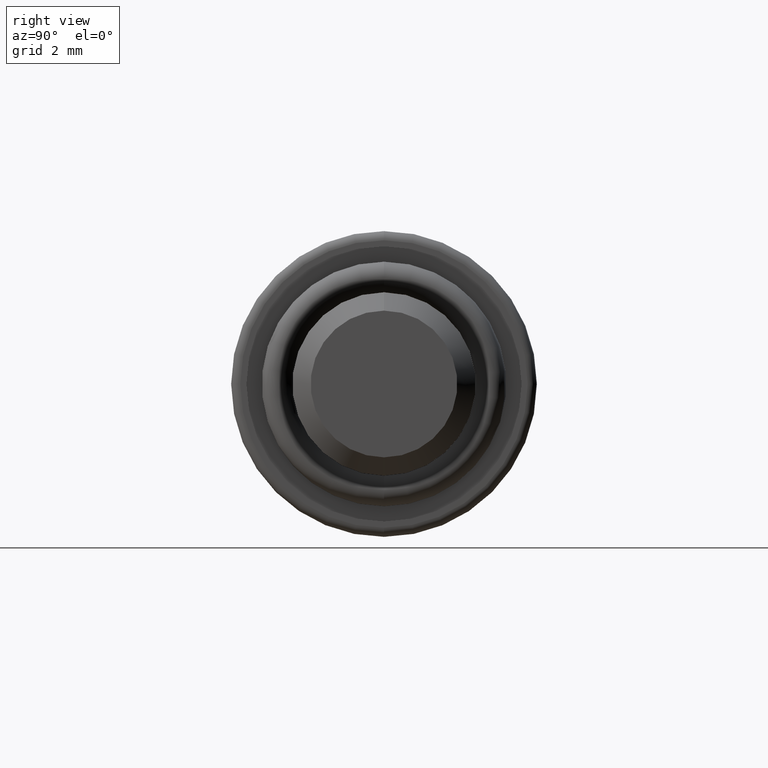
[diagram: clean part render]
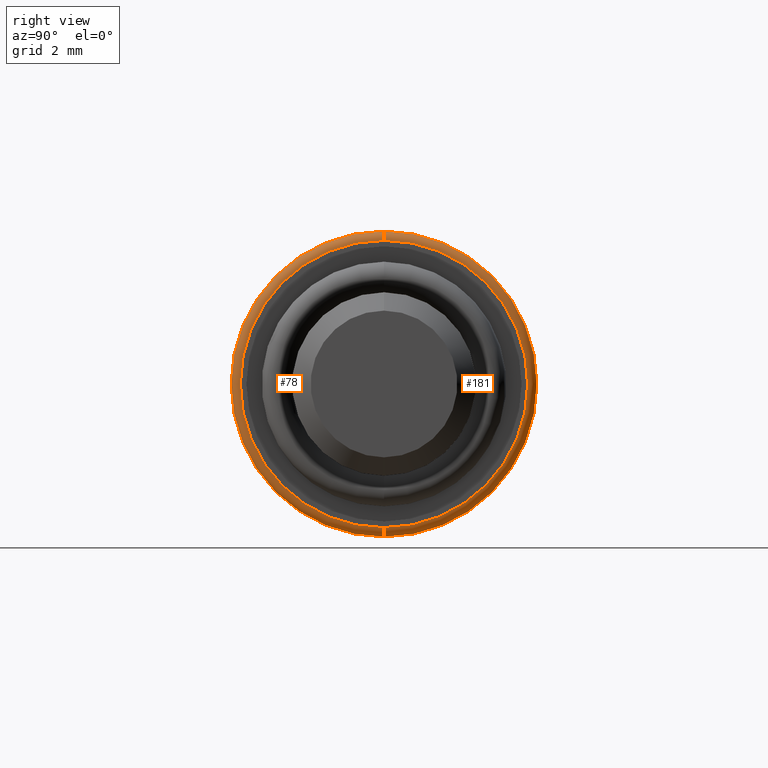
[diagram: same view with one multi-face feature highlighted, each face labeled with its STEP entity id]
A machine part, right view. The highlighted faces form ONE feature: a constant-radius fillet chain: 2 tangent blend faces with common blend radius 0.3 mm. The faces share edges in the B-rep.
Their STEP definitions:
[1] entity #78 (Torus):
#62 = EDGE_CURVE ( 'NONE', #451, #239, #112, .T. ) ;
#78 = ADVANCED_FACE ( 'NONE', ( #259 ), #421, .T. ) ;
#81 = DIRECTION ( 'NONE',  ( 0.0000000000000000000, 1.224646799147353200E-016, 1.000000000000000000 ) ) ;
#102 = AXIS2_PLACEMENT_3D ( 'NONE', #430, #266, #489 ) ;
#105 = ORIENTED_EDGE ( 'NONE', *, *, #233, .T. ) ;
#112 = CIRCLE ( 'NONE', #806, 0.2999999999999999300 ) ;
#142 = DIRECTION ( 'NONE',  ( 0.0000000000000000000, 0.0000000000000000000, -1.000000000000000000 ) ) ;
#151 = CARTESIAN_POINT ( 'NONE',  ( 0.0000000000000000000, 0.0000000000000000000, -4.700000000000000200 ) ) ;
#190 = EDGE_CURVE ( 'NONE', #454, #451, #662, .T. ) ;
#200 = CARTESIAN_POINT ( 'NONE',  ( 0.0000000000000000000, 5.939536975864663000E-016, 4.700000000000000200 ) ) ;
#209 = DIRECTION ( 'NONE',  ( 1.000000000000000000, 0.0000000000000000000, 0.0000000000000000000 ) ) ;
#211 = CARTESIAN_POINT ( 'NONE',  ( -0.2999999999999999300, 6.123233995736765300E-016, 5.000000000000000000 ) ) ;
#222 = ORIENTED_EDGE ( 'NONE', *, *, #62, .F. ) ;
#233 = EDGE_CURVE ( 'NONE', #454, #746, #338, .T. ) ;
#239 = VERTEX_POINT ( 'NONE', #200 ) ;
#259 = FACE_OUTER_BOUND ( 'NONE', #353, .T. ) ;
#266 = DIRECTION ( 'NONE',  ( -1.000000000000000000, -0.0000000000000000000, -0.0000000000000000000 ) ) ;
#276 = AXIS2_PLACEMENT_3D ( 'NONE', #345, #633, #142 ) ;
#334 = DIRECTION ( 'NONE',  ( 0.0000000000000000000, 0.0000000000000000000, -1.000000000000000000 ) ) ;
#335 = AXIS2_PLACEMENT_3D ( 'NONE', #519, #631, #709 ) ;
#338 = CIRCLE ( 'NONE', #276, 0.2999999999999999300 ) ;
#344 = ORIENTED_EDGE ( 'NONE', *, *, #190, .F. ) ;
#345 = CARTESIAN_POINT ( 'NONE',  ( -0.2999999999999999300, 0.0000000000000000000, -4.700000000000000200 ) ) ;
#353 = EDGE_LOOP ( 'NONE', ( #222, #344, #105, #551 ) ) ;
#408 = AXIS2_PLACEMENT_3D ( 'NONE', #439, #209, #334 ) ;
#421 = TOROIDAL_SURFACE ( 'NONE', #408, 4.700000000000000200, 0.2999999999999999900 ) ;
#430 = CARTESIAN_POINT ( 'NONE',  ( -0.2999999999999999300, 0.0000000000000000000, 0.0000000000000000000 ) ) ;
#439 = CARTESIAN_POINT ( 'NONE',  ( -0.2999999999999999300, 0.0000000000000000000, 0.0000000000000000000 ) ) ;
#451 = VERTEX_POINT ( 'NONE', #211 ) ;
#454 = VERTEX_POINT ( 'NONE', #470 ) ;
#466 = EDGE_CURVE ( 'NONE', #239, #746, #703, .T. ) ;
#470 = CARTESIAN_POINT ( 'NONE',  ( -0.2999999999999999300, 0.0000000000000000000, -5.000000000000000000 ) ) ;
#489 = DIRECTION ( 'NONE',  ( 0.0000000000000000000, 0.0000000000000000000, -1.000000000000000000 ) ) ;
#519 = CARTESIAN_POINT ( 'NONE',  ( 0.0000000000000000000, 0.0000000000000000000, 0.0000000000000000000 ) ) ;
#521 = DIRECTION ( 'NONE',  ( 0.0000000000000000000, 1.000000000000000000, -1.224646799147353200E-016 ) ) ;
#551 = ORIENTED_EDGE ( 'NONE', *, *, #466, .F. ) ;
#631 = DIRECTION ( 'NONE',  ( 1.000000000000000000, 0.0000000000000000000, 0.0000000000000000000 ) ) ;
#633 = DIRECTION ( 'NONE',  ( 0.0000000000000000000, -1.000000000000000000, 0.0000000000000000000 ) ) ;
#662 = CIRCLE ( 'NONE', #102, 5.000000000000000000 ) ;
#670 = CARTESIAN_POINT ( 'NONE',  ( -0.2999999999999999300, 5.755839955992559700E-016, 4.700000000000000200 ) ) ;
#703 = CIRCLE ( 'NONE', #335, 4.700000000000000200 ) ;
#709 = DIRECTION ( 'NONE',  ( 0.0000000000000000000, 0.0000000000000000000, -1.000000000000000000 ) ) ;
#746 = VERTEX_POINT ( 'NONE', #151 ) ;
#806 = AXIS2_PLACEMENT_3D ( 'NONE', #670, #521, #81 ) ;
[2] entity #181 (Torus):
#25 = EDGE_CURVE ( 'NONE', #451, #454, #326, .T. ) ;
#62 = EDGE_CURVE ( 'NONE', #451, #239, #112, .T. ) ;
#81 = DIRECTION ( 'NONE',  ( 0.0000000000000000000, 1.224646799147353200E-016, 1.000000000000000000 ) ) ;
#112 = CIRCLE ( 'NONE', #806, 0.2999999999999999300 ) ;
#115 = CARTESIAN_POINT ( 'NONE',  ( -0.2999999999999999300, 0.0000000000000000000, 0.0000000000000000000 ) ) ;
#136 = ORIENTED_EDGE ( 'NONE', *, *, #25, .F. ) ;
#142 = DIRECTION ( 'NONE',  ( 0.0000000000000000000, 0.0000000000000000000, -1.000000000000000000 ) ) ;
#151 = CARTESIAN_POINT ( 'NONE',  ( 0.0000000000000000000, 0.0000000000000000000, -4.700000000000000200 ) ) ;
#181 = ADVANCED_FACE ( 'NONE', ( #673 ), #515, .T. ) ;
#184 = AXIS2_PLACEMENT_3D ( 'NONE', #553, #568, #319 ) ;
#194 = EDGE_CURVE ( 'NONE', #746, #239, #811, .T. ) ;
#200 = CARTESIAN_POINT ( 'NONE',  ( 0.0000000000000000000, 5.939536975864663000E-016, 4.700000000000000200 ) ) ;
#211 = CARTESIAN_POINT ( 'NONE',  ( -0.2999999999999999300, 6.123233995736765300E-016, 5.000000000000000000 ) ) ;
#233 = EDGE_CURVE ( 'NONE', #454, #746, #338, .T. ) ;
#239 = VERTEX_POINT ( 'NONE', #200 ) ;
#245 = DIRECTION ( 'NONE',  ( 0.0000000000000000000, 0.0000000000000000000, -1.000000000000000000 ) ) ;
#276 = AXIS2_PLACEMENT_3D ( 'NONE', #345, #633, #142 ) ;
#319 = DIRECTION ( 'NONE',  ( 0.0000000000000000000, 0.0000000000000000000, -1.000000000000000000 ) ) ;
#326 = CIRCLE ( 'NONE', #716, 5.000000000000000000 ) ;
#338 = CIRCLE ( 'NONE', #276, 0.2999999999999999300 ) ;
#345 = CARTESIAN_POINT ( 'NONE',  ( -0.2999999999999999300, 0.0000000000000000000, -4.700000000000000200 ) ) ;
#451 = VERTEX_POINT ( 'NONE', #211 ) ;
#454 = VERTEX_POINT ( 'NONE', #470 ) ;
#470 = CARTESIAN_POINT ( 'NONE',  ( -0.2999999999999999300, 0.0000000000000000000, -5.000000000000000000 ) ) ;
#508 = ORIENTED_EDGE ( 'NONE', *, *, #194, .F. ) ;
#512 = DIRECTION ( 'NONE',  ( -1.000000000000000000, -0.0000000000000000000, -0.0000000000000000000 ) ) ;
#515 = TOROIDAL_SURFACE ( 'NONE', #614, 4.700000000000000200, 0.2999999999999999900 ) ;
#521 = DIRECTION ( 'NONE',  ( 0.0000000000000000000, 1.000000000000000000, -1.224646799147353200E-016 ) ) ;
#553 = CARTESIAN_POINT ( 'NONE',  ( 0.0000000000000000000, 0.0000000000000000000, 0.0000000000000000000 ) ) ;
#568 = DIRECTION ( 'NONE',  ( 1.000000000000000000, 0.0000000000000000000, 0.0000000000000000000 ) ) ;
#614 = AXIS2_PLACEMENT_3D ( 'NONE', #115, #729, #682 ) ;
#633 = DIRECTION ( 'NONE',  ( 0.0000000000000000000, -1.000000000000000000, 0.0000000000000000000 ) ) ;
#670 = CARTESIAN_POINT ( 'NONE',  ( -0.2999999999999999300, 5.755839955992559700E-016, 4.700000000000000200 ) ) ;
#673 = FACE_OUTER_BOUND ( 'NONE', #769, .T. ) ;
#676 = ORIENTED_EDGE ( 'NONE', *, *, #62, .T. ) ;
#682 = DIRECTION ( 'NONE',  ( 0.0000000000000000000, 0.0000000000000000000, -1.000000000000000000 ) ) ;
#716 = AXIS2_PLACEMENT_3D ( 'NONE', #748, #512, #245 ) ;
#729 = DIRECTION ( 'NONE',  ( 1.000000000000000000, 0.0000000000000000000, 0.0000000000000000000 ) ) ;
#737 = ORIENTED_EDGE ( 'NONE', *, *, #233, .F. ) ;
#746 = VERTEX_POINT ( 'NONE', #151 ) ;
#748 = CARTESIAN_POINT ( 'NONE',  ( -0.2999999999999999300, 0.0000000000000000000, 0.0000000000000000000 ) ) ;
#769 = EDGE_LOOP ( 'NONE', ( #136, #676, #508, #737 ) ) ;
#806 = AXIS2_PLACEMENT_3D ( 'NONE', #670, #521, #81 ) ;
#811 = CIRCLE ( 'NONE', #184, 4.700000000000000200 ) ;